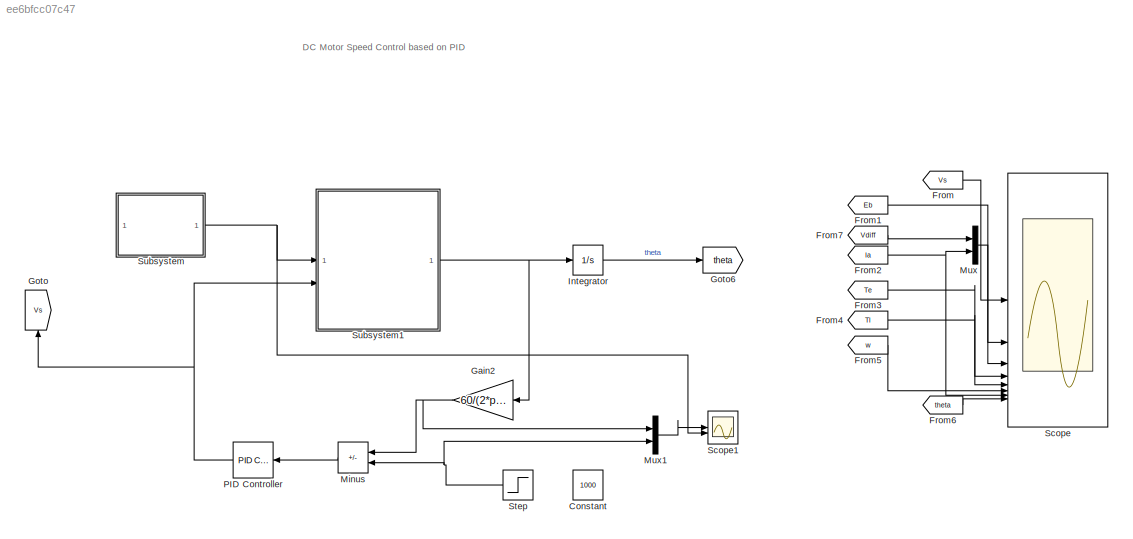
MODEL slx_ee6bfcc07c47
KIND model
CONFIG AbsTol = auto
CONFIG EnableMultiTasking = off
CONFIG FixedStep = auto
CONFIG InitFcn = ra = 6.9;\nla = 41.5e-3;\nKt=1.424;\nKe=0.96;\nJ = .005;\nB=0.0099;
CONFIG MaxStep = auto
CONFIG MinStep = auto
CONFIG RelTol = 1e-3
CONFIG SampleTimeConstraint = Unconstrained
CONFIG SolverName = VariableStepAuto
CONFIG StartTime = 0.0
CONFIG StopTime = 100
BLOCK [Constant] Constant
  NameLocation = top
  Value = 1000
BLOCK [From] From
  GotoTag = Vs
BLOCK [From] From1
  GotoTag = Eb
  TagVisibility = global
BLOCK [From] From2
  GotoTag = Ia
  TagVisibility = global
BLOCK [From] From3
  GotoTag = Te
  TagVisibility = global
BLOCK [From] From4
  GotoTag = Tl
  TagVisibility = global
BLOCK [From] From5
  GotoTag = w
  TagVisibility = global
BLOCK [From] From6
  GotoTag = theta
BLOCK [From] From7
  GotoTag = Vdiff
  TagVisibility = global
BLOCK [Gain] Gain2
  Gain = 60/(2*pi)
  NameLocation = top
BLOCK [Goto] Goto
  GotoTag = Vs
  NameLocation = right
BLOCK [Goto] Goto6
  GotoTag = theta
BLOCK [Integrator] Integrator
BLOCK [Sum] Minus
  IconShape = rectangular
  Inputs = -+
  NameLocation = top
BLOCK [Mux] Mux
  DisplayOption = bar
  Inputs = 2
BLOCK [Mux] Mux1
  DisplayOption = bar
  Inputs = 2
BLOCK [Reference] PID Controller  REF=slpidlib/PID Controller
  LibrarySourceBlock = simulink/Continuous/PID Controller
  NameLocation = top
  SourceBlock = slpidlib/PID Controller
  SourceType = PID 1dof
BLOCK [Scope] Scope
  Floating = off
  NumInputPorts = 8
  ScopeSpecificationString = Simulink.scopes.TimeScopeBlockCfg('CurrentConfiguration', extmgr.ConfigurationSet(extmgr.Configuration('Core','General UI',true,'FigureColor',[1 1 1]),extmgr.Configuration('Core','Source UI',true),extmgr.Configuration('Sources','WiredSimulink',true),extmgr.Configuration('Visuals','Time Domain',true,'SerializedDisplays',{struct('MinYLimReal','-27.5','MaxYLimReal','247.5','YLabelReal','','MinYLimMag...<+7405ch>
BLOCK [Scope] Scope1
  Floating = off
  NumInputPorts = 2
  ScopeSpecificationString = Simulink.scopes.TimeScopeBlockCfg('CurrentConfiguration', extmgr.ConfigurationSet(extmgr.Configuration('Core','General UI',true,'FigureColor',[1 1 1]),extmgr.Configuration('Core','Source UI',true),extmgr.Configuration('Sources','WiredSimulink',true,'DataLoggingVariableName','ScopeData1'),extmgr.Configuration('Visuals','Time Domain',true,'SerializedDisplays',{struct('MinYLimReal','-152.92508','MaxY...<+2961ch>
BLOCK [Step] Step
  After = 1000
  Before = 1200
  NameLocation = top
  SampleTime = 0
  Time = 50
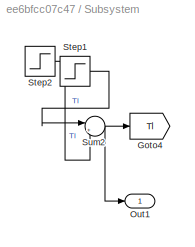
BLOCK [SubSystem] Subsystem
BLOCK [Goto] Subsystem/Goto4
  GotoTag = Tl
  TagVisibility = global
BLOCK [Outport] Subsystem/Out1
BLOCK [Step] Subsystem/Step1
  After = 5
  SampleTime = 0
  Time = 20
BLOCK [Step] Subsystem/Step2
  After = 9
  SampleTime = 0
  Time = 40
BLOCK [Sum] Subsystem/Sum2
  Inputs = |++
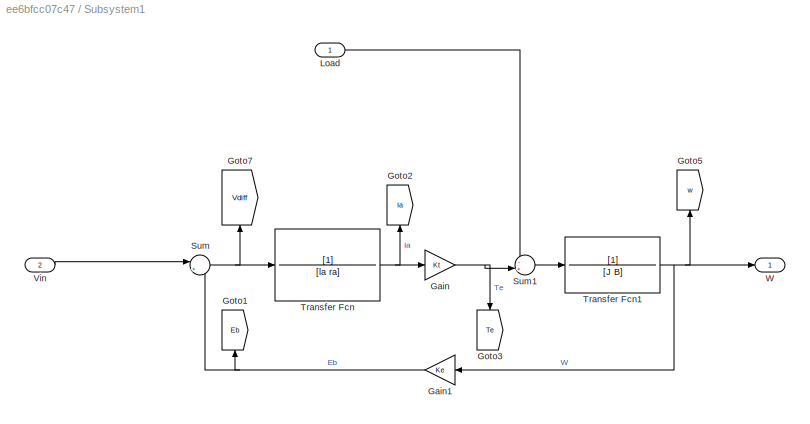
BLOCK [SubSystem] Subsystem1
BLOCK [Gain] Subsystem1/Gain
  Gain = Kt
BLOCK [Gain] Subsystem1/Gain1
  Gain = Ke
  NameLocation = top
BLOCK [Goto] Subsystem1/Goto1
  GotoTag = Eb
  NameLocation = right
  TagVisibility = global
BLOCK [Goto] Subsystem1/Goto2
  GotoTag = Ia
  NameLocation = right
  TagVisibility = global
BLOCK [Goto] Subsystem1/Goto3
  GotoTag = Te
  NameLocation = left
  TagVisibility = global
BLOCK [Goto] Subsystem1/Goto5
  GotoTag = w
  NameLocation = right
  TagVisibility = global
BLOCK [Goto] Subsystem1/Goto7
  GotoTag = Vdiff
  NameLocation = right
  TagVisibility = global
BLOCK [Inport] Subsystem1/Load
BLOCK [Sum] Subsystem1/Sum
  Inputs = |+-
BLOCK [Sum] Subsystem1/Sum1
  Inputs = -+|
BLOCK [TransferFcn] Subsystem1/Transfer Fcn
  Denominator = [la ra]
BLOCK [TransferFcn] Subsystem1/Transfer Fcn1
  Denominator = [J B]
BLOCK [Inport] Subsystem1/Vin
  Port = 2
BLOCK [Outport] Subsystem1/W
ANNOTATION (root): DC Motor Speed Control based on PID
LINE From1:1 -> Scope:2
NET From2:1 -> Mux:2, Scope:7
LINE From3:1 -> Scope:4
LINE From4:1 -> Scope:5
LINE From5:1 -> Scope:6
LINE From6:1 -> Scope:8
LINE From7:1 -> Mux:1
LINE From:1 -> Scope:1
NET Gain2:1 -> Minus:1, Mux1:1
LINE Integrator:1 -> Goto6:1
LINE Minus:1 -> PID Controller:1
LINE Mux1:1 -> Scope1:1
LINE Mux:1 -> Scope:3
NET PID Controller:1 -> Goto:1, Subsystem1:2
NET Step:1 -> Minus:2, Mux1:2
LINE Subsystem/Step1:1 -> Subsystem/Sum2:1
LINE Subsystem/Step2:1 -> Subsystem/Sum2:2
NET Subsystem/Sum2:1 -> Subsystem/Goto4:1, Subsystem/Out1:1
NET Subsystem1/Gain1:1 -> Subsystem1/Goto1:1, Subsystem1/Sum:2
NET Subsystem1/Gain:1 -> Subsystem1/Goto3:1, Subsystem1/Sum1:2
LINE Subsystem1/Load:1 -> Subsystem1/Sum1:1
LINE Subsystem1/Sum1:1 -> Subsystem1/Transfer Fcn1:1
NET Subsystem1/Sum:1 -> Subsystem1/Goto7:1, Subsystem1/Transfer Fcn:1
NET Subsystem1/Transfer Fcn1:1 -> Subsystem1/Gain1:1, Subsystem1/Goto5:1, Subsystem1/W:1
NET Subsystem1/Transfer Fcn:1 -> Subsystem1/Gain:1, Subsystem1/Goto2:1
LINE Subsystem1/Vin:1 -> Subsystem1/Sum:1
NET Subsystem1:1 -> Gain2:1, Integrator:1
NET Subsystem:1 -> Scope1:2, Subsystem1:1
note: NET lines group one-source signal fan-out (src -> all destinations, sorted); 1:1 wires keep LINE
